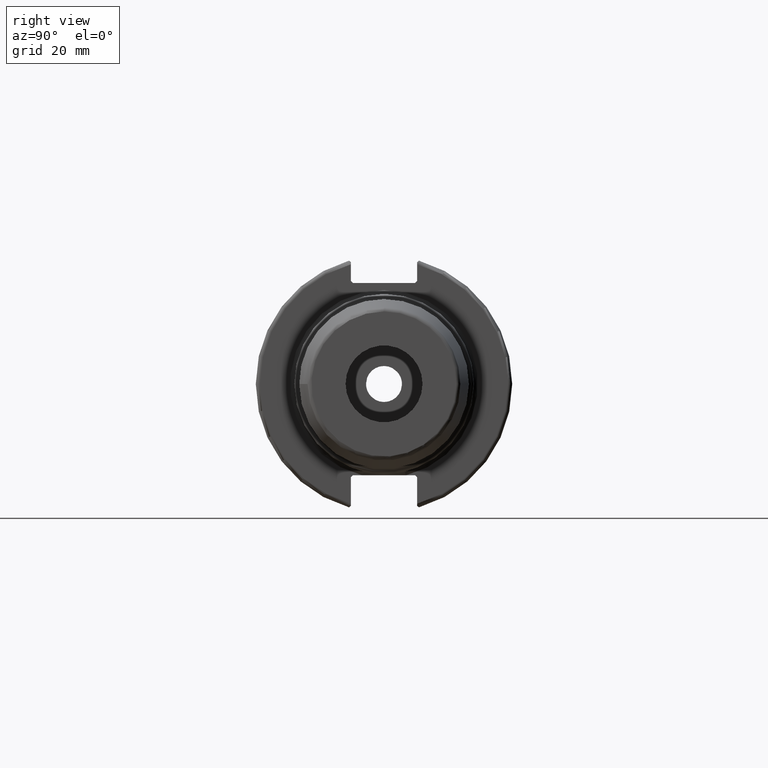
[diagram: clean part render]
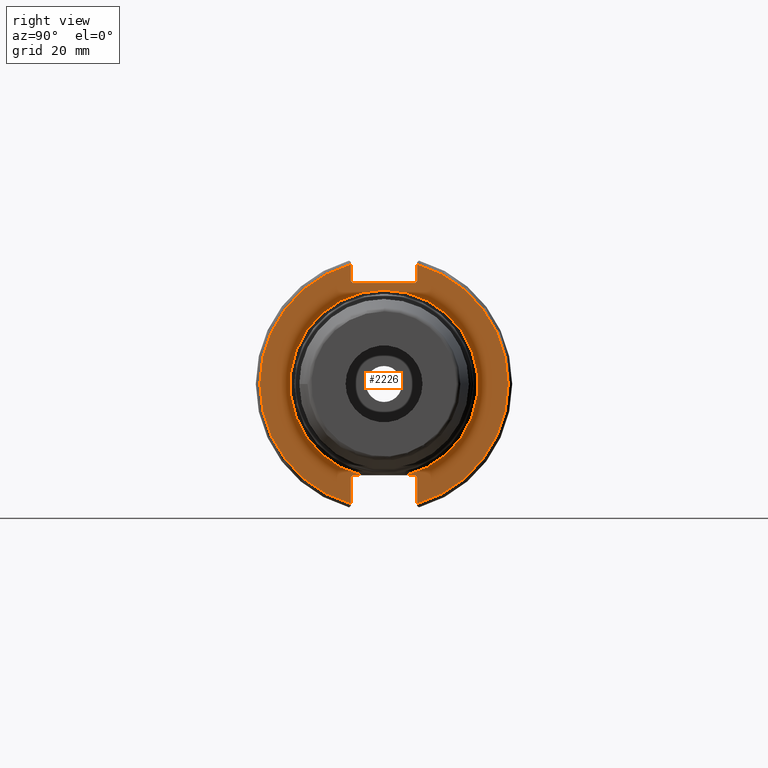
[diagram: same view with one face highlighted and labeled with its STEP entity id]
A machine part, right view. The second image highlights one B-rep face of the part: STEP entity #2226.
In plain terms, the highlighted planar face has unit normal (1, 0, 0).
Its self-contained STEP definition (entity closure, byte-faithful):
#64=PLANE('',#2514);
#240=FACE_OUTER_BOUND('',#359,.T.);
#359=EDGE_LOOP('',(#1855,#1856,#1857,#1858,#1859,#1860,#1861,#1862,#1863,
#1864,#1865,#1866,#1867,#1868));
#458=LINE('',#4074,#563);
#462=LINE('',#4092,#567);
#463=LINE('',#4093,#568);
#464=LINE('',#4095,#569);
#465=LINE('',#4097,#570);
#466=LINE('',#4099,#571);
#467=LINE('',#4101,#572);
#468=LINE('',#4103,#573);
#469=LINE('',#4107,#574);
#470=LINE('',#4109,#575);
#471=LINE('',#4110,#576);
#563=VECTOR('',#3095,10.);
#567=VECTOR('',#3101,10.);
#568=VECTOR('',#3102,10.);
#569=VECTOR('',#3103,10.);
#570=VECTOR('',#3104,10.);
#571=VECTOR('',#3105,10.);
#572=VECTOR('',#3106,10.);
#573=VECTOR('',#3107,10.);
#574=VECTOR('',#3110,10.);
#575=VECTOR('',#3111,10.);
#576=VECTOR('',#3112,10.);
#705=CIRCLE('',#2401,23.25);
#759=CIRCLE('',#2510,30.75);
#761=CIRCLE('',#2515,30.75);
#881=VERTEX_POINT('',#3603);
#882=VERTEX_POINT('',#3610);
#975=VERTEX_POINT('',#4029);
#976=VERTEX_POINT('',#4036);
#982=VERTEX_POINT('',#4073);
#986=VERTEX_POINT('',#4091);
#987=VERTEX_POINT('',#4094);
#988=VERTEX_POINT('',#4096);
#989=VERTEX_POINT('',#4098);
#990=VERTEX_POINT('',#4100);
#991=VERTEX_POINT('',#4102);
#992=VERTEX_POINT('',#4104);
#993=VERTEX_POINT('',#4106);
#994=VERTEX_POINT('',#4108);
#1160=EDGE_CURVE('',#881,#882,#705,.T.);
#1285=EDGE_CURVE('',#975,#976,#759,.T.);
#1293=EDGE_CURVE('',#982,#976,#458,.T.);
#1299=EDGE_CURVE('',#881,#986,#462,.T.);
#1300=EDGE_CURVE('',#982,#986,#463,.T.);
#1301=EDGE_CURVE('',#975,#987,#464,.T.);
#1302=EDGE_CURVE('',#988,#987,#465,.T.);
#1303=EDGE_CURVE('',#988,#989,#466,.T.);
#1304=EDGE_CURVE('',#990,#989,#467,.T.);
#1305=EDGE_CURVE('',#990,#991,#468,.T.);
#1306=EDGE_CURVE('',#992,#991,#761,.T.);
#1307=EDGE_CURVE('',#992,#993,#469,.T.);
#1308=EDGE_CURVE('',#994,#993,#470,.T.);
#1309=EDGE_CURVE('',#994,#882,#471,.T.);
#1855=ORIENTED_EDGE('',*,*,#1160,.F.);
#1856=ORIENTED_EDGE('',*,*,#1299,.T.);
#1857=ORIENTED_EDGE('',*,*,#1300,.F.);
#1858=ORIENTED_EDGE('',*,*,#1293,.T.);
#1859=ORIENTED_EDGE('',*,*,#1285,.F.);
#1860=ORIENTED_EDGE('',*,*,#1301,.T.);
#1861=ORIENTED_EDGE('',*,*,#1302,.F.);
#1862=ORIENTED_EDGE('',*,*,#1303,.T.);
#1863=ORIENTED_EDGE('',*,*,#1304,.F.);
#1864=ORIENTED_EDGE('',*,*,#1305,.T.);
#1865=ORIENTED_EDGE('',*,*,#1306,.F.);
#1866=ORIENTED_EDGE('',*,*,#1307,.T.);
#1867=ORIENTED_EDGE('',*,*,#1308,.F.);
#1868=ORIENTED_EDGE('',*,*,#1309,.T.);
#2226=ADVANCED_FACE('',(#240),#64,.T.);
#2401=AXIS2_PLACEMENT_3D('',#3611,#2836,#2837);
#2510=AXIS2_PLACEMENT_3D('',#4037,#3085,#3086);
#2514=AXIS2_PLACEMENT_3D('',#4090,#3099,#3100);
#2515=AXIS2_PLACEMENT_3D('',#4105,#3108,#3109);
#2836=DIRECTION('center_axis',(1.,0.,0.));
#2837=DIRECTION('ref_axis',(0.,-1.,-1.22464679914735E-16));
#3085=DIRECTION('center_axis',(-1.,0.,0.));
#3086=DIRECTION('ref_axis',(0.,1.,-6.12323399573677E-17));
#3095=DIRECTION('',(0.,0.,-1.));
#3099=DIRECTION('center_axis',(1.,0.,0.));
#3100=DIRECTION('ref_axis',(0.,0.,-1.));
#3101=DIRECTION('',(0.,1.,0.));
#3102=DIRECTION('',(0.,-0.707106781186549,0.707106781186546));
#3103=DIRECTION('',(0.,0.,-1.));
#3104=DIRECTION('',(0.,0.707106781186549,0.707106781186546));
#3105=DIRECTION('',(0.,-1.,0.));
#3106=DIRECTION('',(0.,0.70710678118655,-0.707106781186545));
#3107=DIRECTION('',(0.,0.,1.));
#3108=DIRECTION('center_axis',(-1.,0.,0.));
#3109=DIRECTION('ref_axis',(0.,-1.,1.60812264967664E-16));
#3110=DIRECTION('',(0.,0.,1.));
#3111=DIRECTION('',(0.,-0.707106781186549,-0.707106781186546));
#3112=DIRECTION('',(0.,1.,0.));
#3603=CARTESIAN_POINT('',(19.05,5.45916660306312,-22.6));
#3610=CARTESIAN_POINT('',(19.05,-5.45916660306312,-22.6));
#3611=CARTESIAN_POINT('Origin',(19.05,0.,0.));
#4029=CARTESIAN_POINT('',(19.05,8.19,29.6392712461019));
#4036=CARTESIAN_POINT('',(19.05,8.19,-29.6392712461019));
#4037=CARTESIAN_POINT('Origin',(19.05,0.,0.));
#4073=CARTESIAN_POINT('',(19.05,8.19,-23.1));
#4074=CARTESIAN_POINT('',(19.05,8.19,-11.3));
#4090=CARTESIAN_POINT('Origin',(19.05,0.,0.));
#4091=CARTESIAN_POINT('',(19.05,7.69,-22.6));
#4092=CARTESIAN_POINT('',(19.05,-2.77555756156289E-16,-22.6));
#4093=CARTESIAN_POINT('',(19.05,0.242499999999989,-15.1525));
#4094=CARTESIAN_POINT('',(19.05,8.19,25.5));
#4095=CARTESIAN_POINT('',(19.05,8.19,12.5));
#4096=CARTESIAN_POINT('',(19.05,7.69,25.));
#4097=CARTESIAN_POINT('',(19.05,-0.35750000000001,16.9525));
#4098=CARTESIAN_POINT('',(19.05,-7.69,25.));
#4099=CARTESIAN_POINT('',(19.05,0.,25.));
#4100=CARTESIAN_POINT('',(19.05,-8.19,25.5));
#4101=CARTESIAN_POINT('',(19.05,0.357500000000014,16.9525));
#4102=CARTESIAN_POINT('',(19.05,-8.19,29.6392712461019));
#4103=CARTESIAN_POINT('',(19.05,-8.19,12.5));
#4104=CARTESIAN_POINT('',(19.05,-8.19,-29.6392712461019));
#4105=CARTESIAN_POINT('Origin',(19.05,0.,0.));
#4106=CARTESIAN_POINT('',(19.05,-8.19,-23.1));
#4107=CARTESIAN_POINT('',(19.05,-8.19,-11.3));
#4108=CARTESIAN_POINT('',(19.05,-7.69,-22.6));
#4109=CARTESIAN_POINT('',(19.05,-0.242499999999991,-15.1525));
#4110=CARTESIAN_POINT('',(19.05,-2.77555756156289E-16,-22.6));